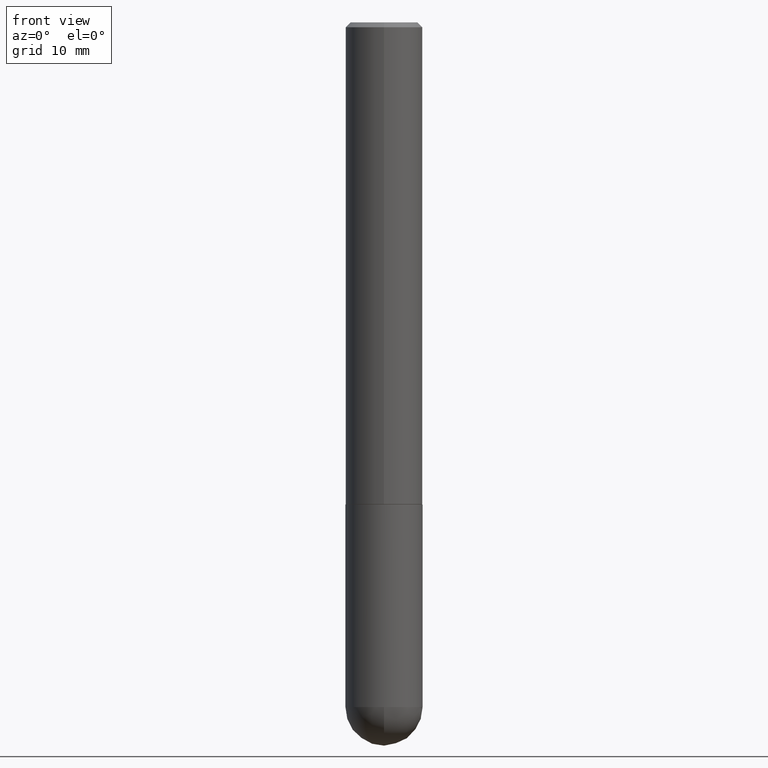
[diagram: clean part render]
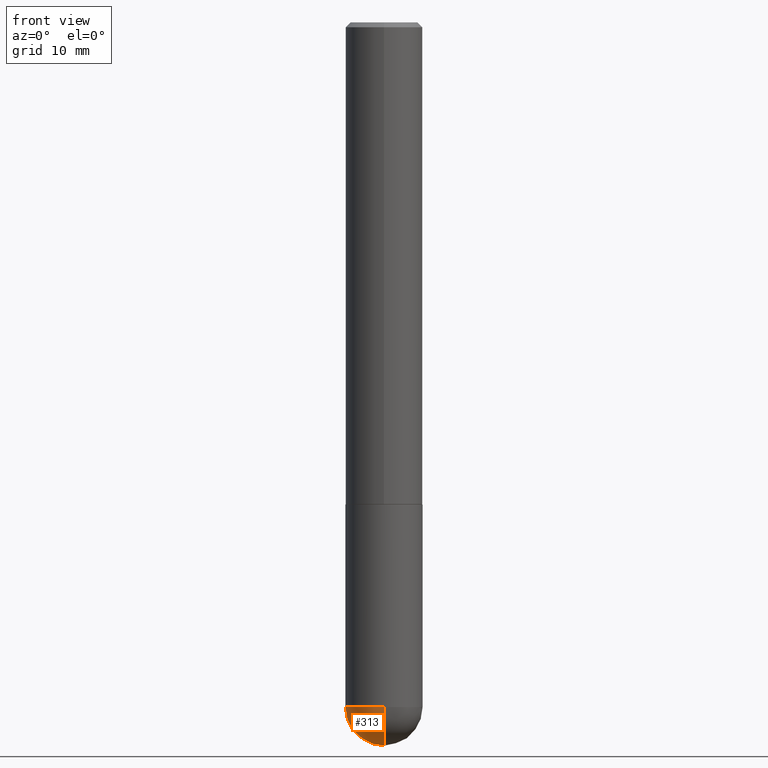
[diagram: same view with one face highlighted and labeled with its STEP entity id]
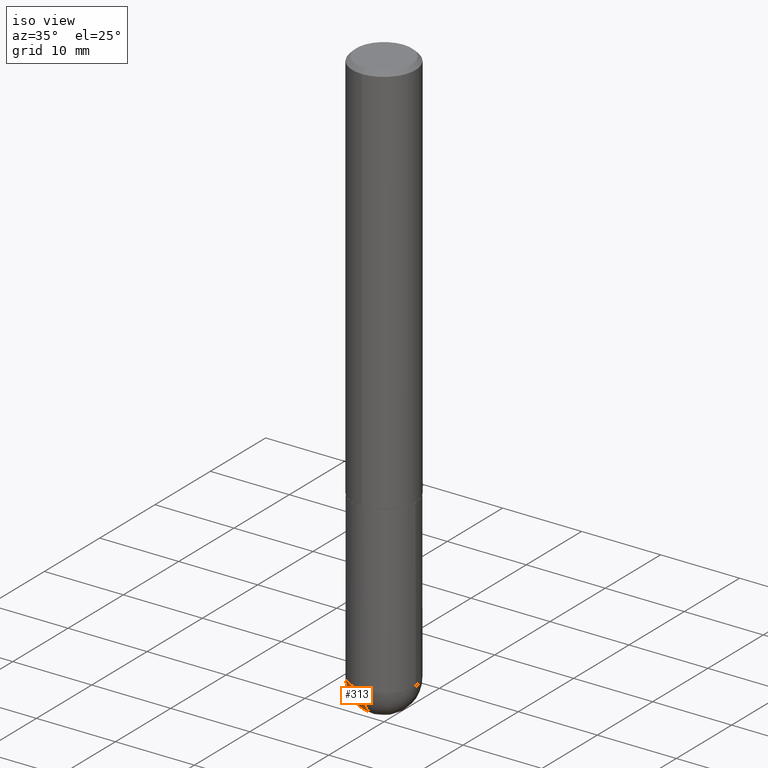
[diagram: same view with one face highlighted and labeled with its STEP entity id]
A machine part, front view. The second image highlights one B-rep face of the part: STEP entity #313.
A second angle (iso view) of the same face is appended — the face is thin or edge-on in the first view.
In plain terms, the highlighted spherical surface has radius 4.0005 mm.
Its self-contained STEP definition (entity closure, byte-faithful):
#7 = DIRECTION ( 'NONE',  ( -2.445468806185136597E-29, 3.491481338843145583E-15, 1.000000000000000000 ) ) ;
#8 = VERTEX_POINT ( 'NONE', #401 ) ;
#25 = DIRECTION ( 'NONE',  ( 1.000000000000000000, -6.982962677686261977E-15, 0.000000000000000000 ) ) ;
#32 = CARTESIAN_POINT ( 'NONE',  ( 6.504699176015425459E-29, -1.023392015460829390E-14, -2.795299999999999674 ) ) ;
#44 = AXIS2_PLACEMENT_3D ( 'NONE', #32, #128, #379 ) ;
#47 = CARTESIAN_POINT ( 'NONE',  ( 6.835818953929311707E-29, -9.759737786468243605E-15, -2.795299999999999674 ) ) ;
#48 = ORIENTED_EDGE ( 'NONE', *, *, #183, .T. ) ;
#66 = CARTESIAN_POINT ( 'NONE',  ( 6.896594947516873652E-29, -1.077418437193280573E-14, -2.952799999999999869 ) ) ;
#91 = DIRECTION ( 'NONE',  ( 6.982962677686265922E-15, 1.000000000000000000, -3.469013325287946588E-15 ) ) ;
#96 = EDGE_LOOP ( 'NONE', ( #194, #48, #101, #365 ) ) ;
#101 = ORIENTED_EDGE ( 'NONE', *, *, #412, .F. ) ;
#128 = DIRECTION ( 'NONE',  ( -1.000000000000000000, 7.105427357601001070E-15, -4.926315508542082329E-29 ) ) ;
#154 = CARTESIAN_POINT ( 'NONE',  ( 6.504699176015425459E-29, -1.023392015460829390E-14, -2.795299999999999674 ) ) ;
#158 = CARTESIAN_POINT ( 'NONE',  ( 6.504699176015425459E-29, -1.023392015460829390E-14, -2.795299999999999674 ) ) ;
#166 = AXIS2_PLACEMENT_3D ( 'NONE', #47, #7, #327 ) ;
#177 = AXIS2_PLACEMENT_3D ( 'NONE', #154, #250, #221 ) ;
#183 = EDGE_CURVE ( 'NONE', #197, #222, #380, .T. ) ;
#189 = CIRCLE ( 'NONE', #349, 0.1575000000000000011 ) ;
#194 = ORIENTED_EDGE ( 'NONE', *, *, #209, .F. ) ;
#197 = VERTEX_POINT ( 'NONE', #66 ) ;
#209 = EDGE_CURVE ( 'NONE', #197, #266, #268, .T. ) ;
#221 = DIRECTION ( 'NONE',  ( 6.982962677686265133E-15, 1.000000000000000000, 0.000000000000000000 ) ) ;
#222 = VERTEX_POINT ( 'NONE', #381 ) ;
#248 = CARTESIAN_POINT ( 'NONE',  ( 6.835818953929311707E-29, -9.759737786468243605E-15, -2.795299999999999674 ) ) ;
#250 = DIRECTION ( 'NONE',  ( 1.000000000000000000, -6.982962677686265922E-15, 4.883557194083112340E-29 ) ) ;
#266 = VERTEX_POINT ( 'NONE', #287 ) ;
#268 = CIRCLE ( 'NONE', #177, 0.1575000000000003064 ) ;
#283 = AXIS2_PLACEMENT_3D ( 'NONE', #158, #377, #91 ) ;
#287 = CARTESIAN_POINT ( 'NONE',  ( 1.099816621735654731E-15, 0.1574999999999901201, -2.795300000000000118 ) ) ;
#301 = EDGE_CURVE ( 'NONE', #266, #8, #189, .T. ) ;
#313 = ADVANCED_FACE ( 'NONE', ( #410 ), #321, .T. ) ;
#317 = DIRECTION ( 'NONE',  ( -2.445468806185136597E-29, 3.491481338843145583E-15, 1.000000000000000000 ) ) ;
#321 = SPHERICAL_SURFACE ( 'NONE', #283, 0.1575000000000003064 ) ;
#327 = DIRECTION ( 'NONE',  ( 1.000000000000000000, -6.982962677686261977E-15, 0.000000000000000000 ) ) ;
#349 = AXIS2_PLACEMENT_3D ( 'NONE', #248, #317, #25 ) ;
#352 = CIRCLE ( 'NONE', #166, 0.1575000000000000011 ) ;
#365 = ORIENTED_EDGE ( 'NONE', *, *, #301, .F. ) ;
#377 = DIRECTION ( 'NONE',  ( -1.000000000000000000, 6.982962677686265922E-15, -4.883557194083112901E-29 ) ) ;
#379 = DIRECTION ( 'NONE',  ( -7.105427357601000281E-15, -1.000000000000000000, 0.000000000000000000 ) ) ;
#380 = CIRCLE ( 'NONE', #44, 0.1575000000000003064 ) ;
#381 = CARTESIAN_POINT ( 'NONE',  ( -1.119104808822091931E-15, -0.1575000000000101319, -2.795299999999998786 ) ) ;
#401 = CARTESIAN_POINT ( 'NONE',  ( -0.1575000000000000011, -7.197254592168330052E-15, -2.795299999999999674 ) ) ;
#410 = FACE_OUTER_BOUND ( 'NONE', #96, .T. ) ;
#412 = EDGE_CURVE ( 'NONE', #8, #222, #352, .T. ) ;